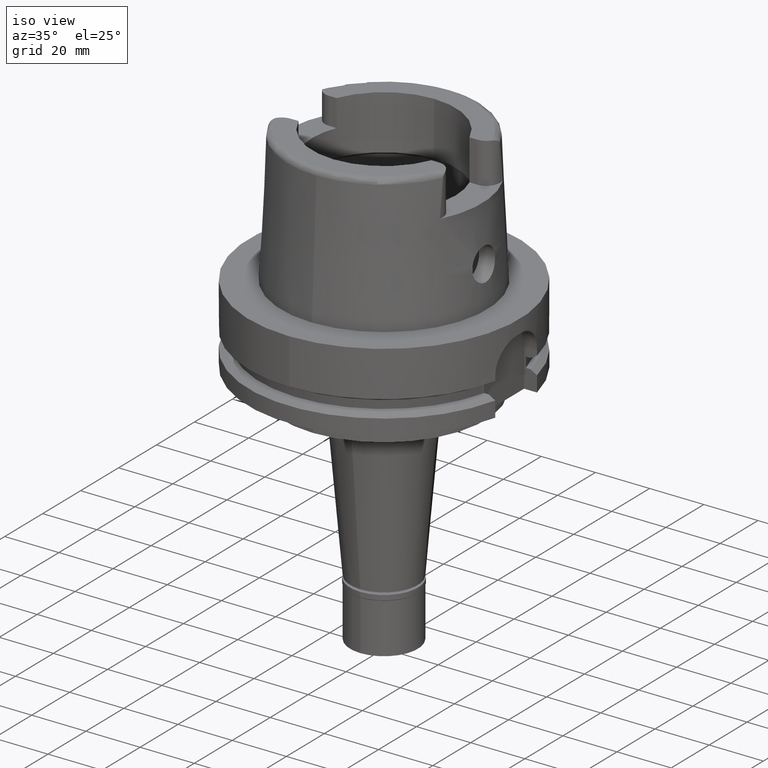
[diagram: clean part render]
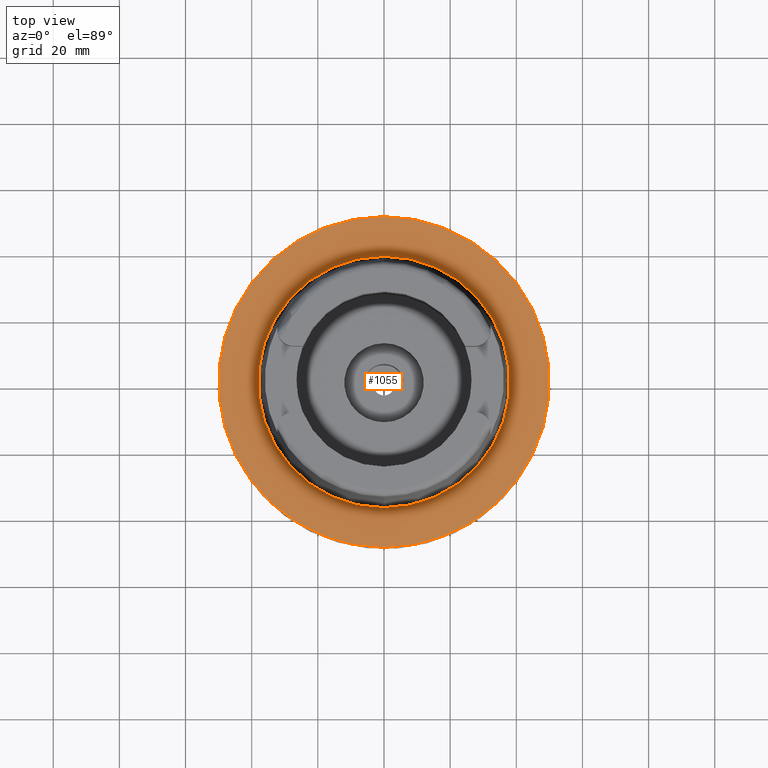
[diagram: tour spotlight — one face highlighted and labeled with its STEP entity id]
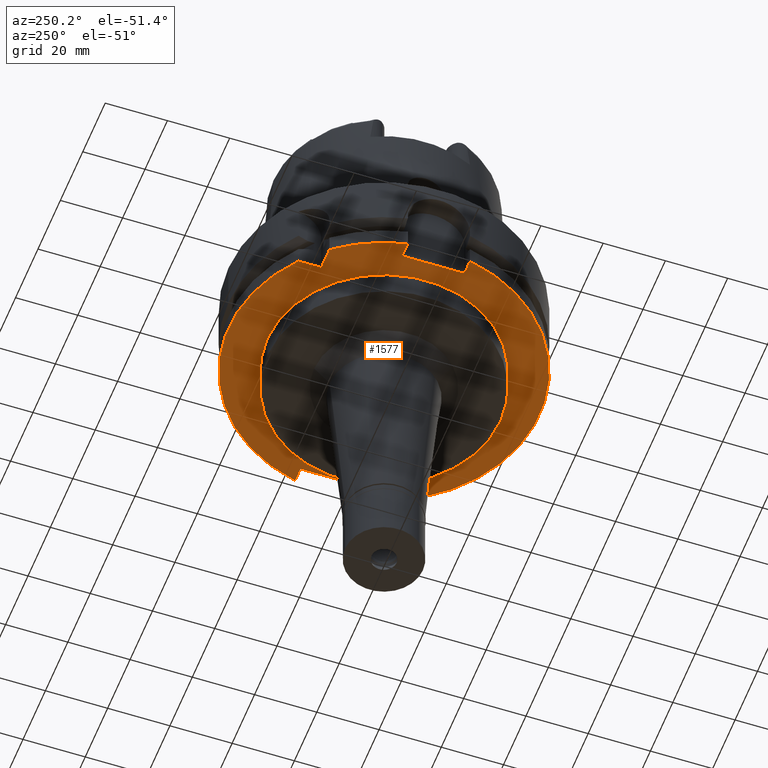
[diagram: tour spotlight — one face highlighted and labeled with its STEP entity id]
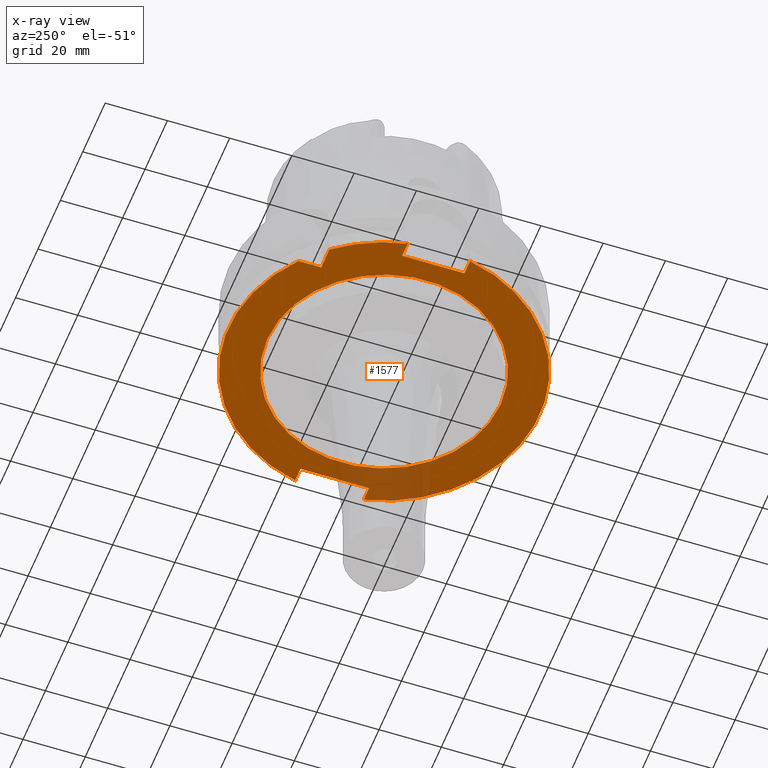
[diagram: x-ray of the same camera — body ghosted, this tour face saturated]
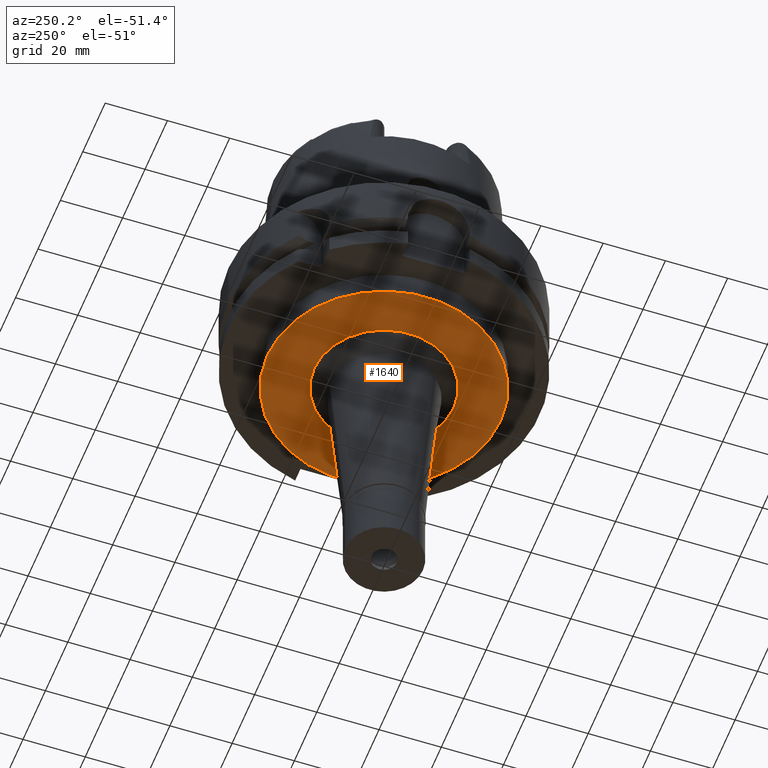
[diagram: tour spotlight — one face highlighted and labeled with its STEP entity id]
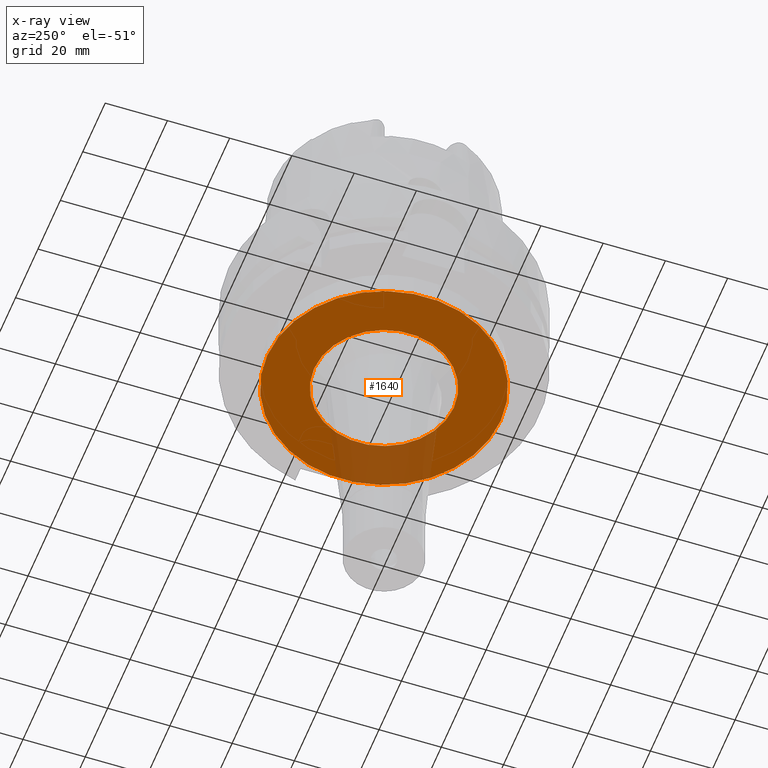
[diagram: x-ray of the same camera — body ghosted, this tour face saturated]
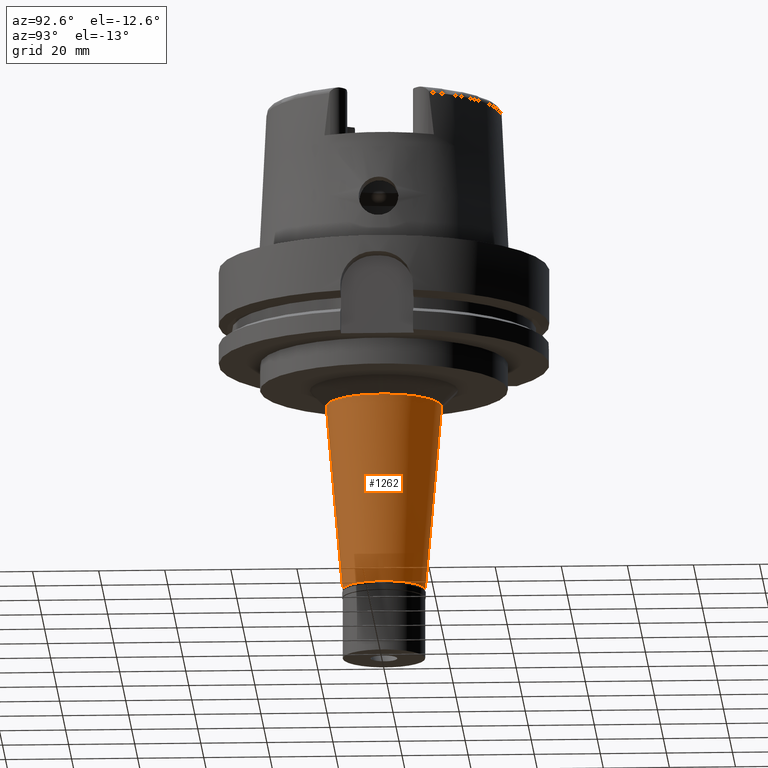
[diagram: tour spotlight — one face highlighted and labeled with its STEP entity id]
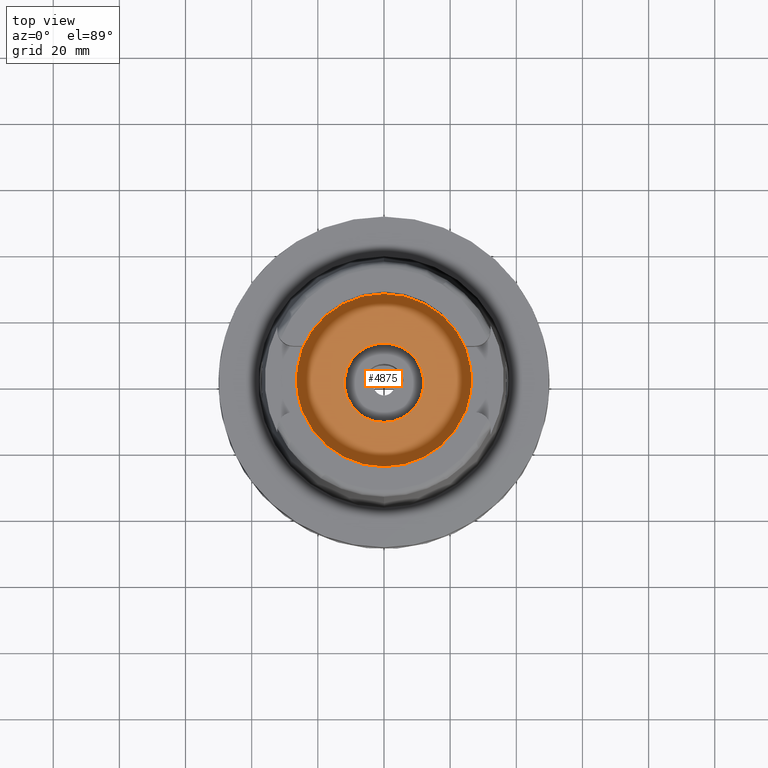
[diagram: tour spotlight — one face highlighted and labeled with its STEP entity id]
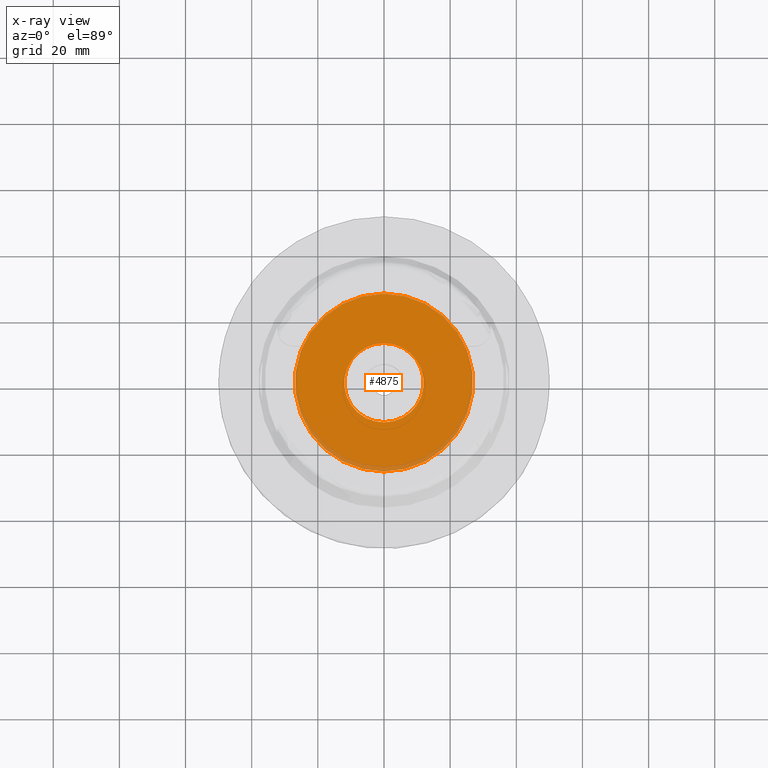
[diagram: x-ray of the same camera — body ghosted, this tour face saturated]
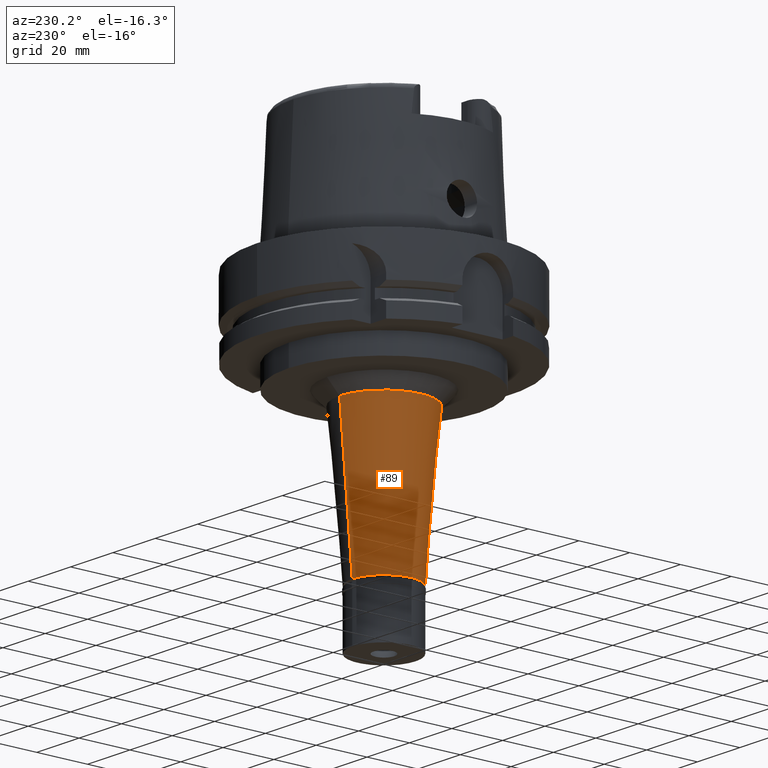
[diagram: tour spotlight — one face highlighted and labeled with its STEP entity id]
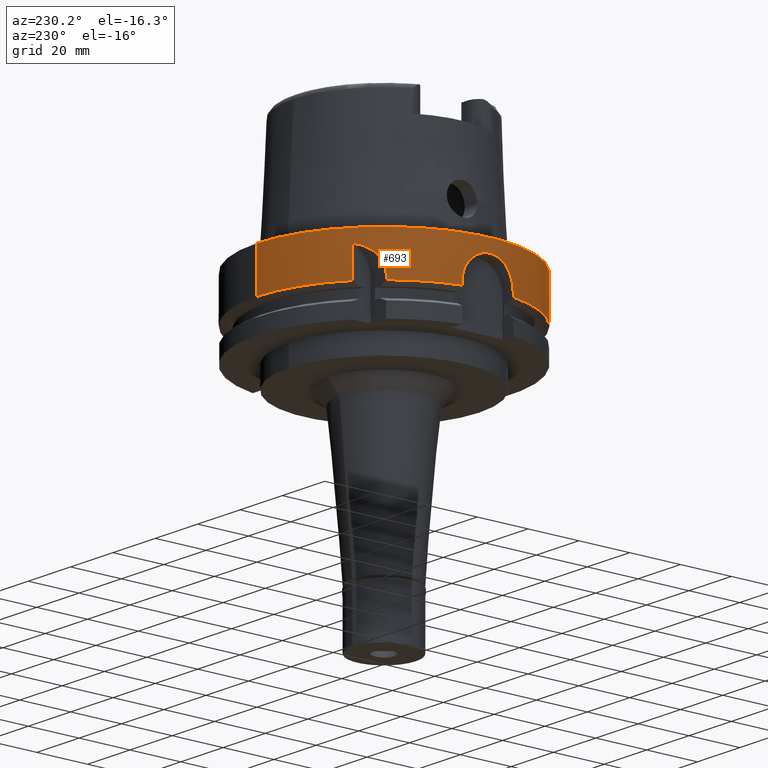
[diagram: tour spotlight — one face highlighted and labeled with its STEP entity id]
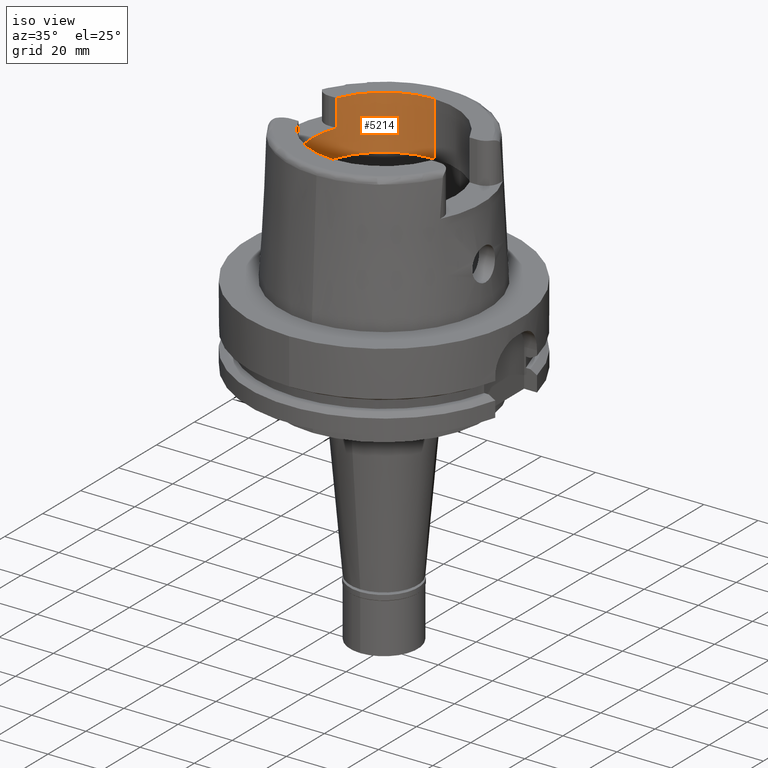
[diagram: tour spotlight — one face highlighted and labeled with its STEP entity id]
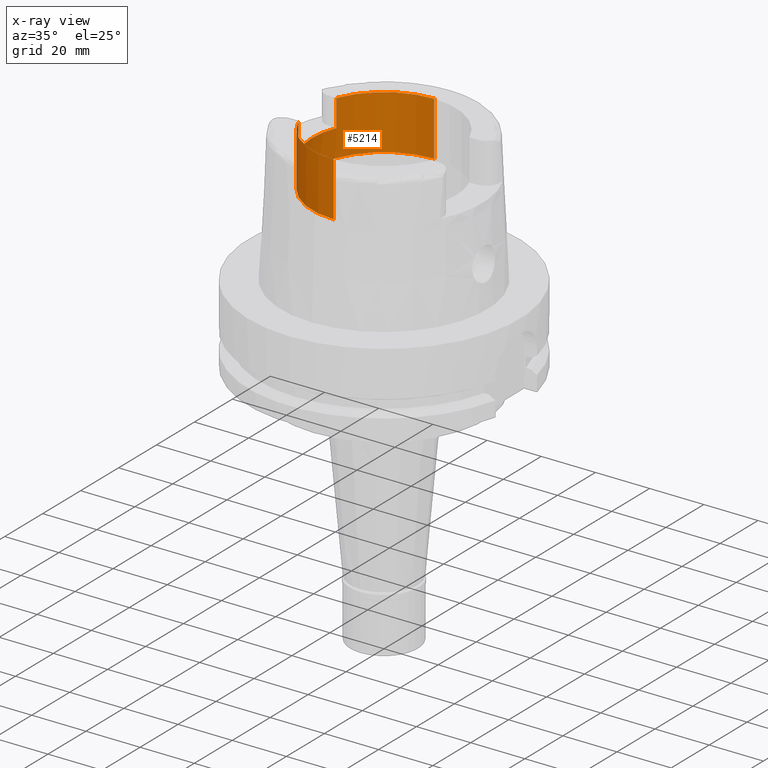
[diagram: x-ray of the same camera — body ghosted, this tour face saturated]
A machine part: a face-by-face anatomy tour. The part has 126 B-rep faces; the first image is the clean iso view, then the 8 largest visible faces are spotlighted one at a time (largest first), each with its STEP entity span.

Face 1 — top view, entity #1055. In plain terms, the highlighted planar face has unit normal (0, 0, 1).
Definition (entity closure, byte-faithful):
#309 = AXIS2_PLACEMENT_3D ( 'NONE', #5203, #2264, #1353 ) ;
#393 = EDGE_LOOP ( 'NONE', ( #4129, #3900 ) ) ;
#403 = CIRCLE ( 'NONE', #1836, 38.00001658251999714 ) ;
#593 = DIRECTION ( 'NONE',  ( 0.0000000000000000000, 0.0000000000000000000, -1.000000000000000000 ) ) ;
#770 = DIRECTION ( 'NONE',  ( 0.0000000000000000000, 0.0000000000000000000, 1.000000000000000000 ) ) ;
#954 = EDGE_CURVE ( 'NONE', #1978, #1067, #403, .T. ) ;
#1055 = ADVANCED_FACE ( 'NONE', ( #5498, #2093 ), #5015, .T. ) ;
#1067 = VERTEX_POINT ( 'NONE', #1131 ) ;
#1131 = CARTESIAN_POINT ( 'NONE',  ( 0.0000000000000000000, 38.00001658251999714, 1.023181539494999863E-12 ) ) ;
#1187 = VERTEX_POINT ( 'NONE', #3714 ) ;
#1353 = DIRECTION ( 'NONE',  ( 0.0000000000000000000, -1.000000000000000000, 0.0000000000000000000 ) ) ;
#1836 = AXIS2_PLACEMENT_3D ( 'NONE', #4429, #3204, #4929 ) ;
#1978 = VERTEX_POINT ( 'NONE', #4362 ) ;
#2093 = FACE_BOUND ( 'NONE', #393, .T. ) ;
#2264 = DIRECTION ( 'NONE',  ( 0.0000000000000000000, 0.0000000000000000000, -1.000000000000000000 ) ) ;
#2277 = AXIS2_PLACEMENT_3D ( 'NONE', #4655, #4203, #5101 ) ;
#2306 = VERTEX_POINT ( 'NONE', #2784 ) ;
#2453 = DIRECTION ( 'NONE',  ( 0.0000000000000000000, 1.000000000000000000, 0.0000000000000000000 ) ) ;
#2722 = CIRCLE ( 'NONE', #309, 50.00000000000000000 ) ;
#2757 = CARTESIAN_POINT ( 'NONE',  ( 0.0000000000000000000, 0.0000000000000000000, -1.847411112975999717E-13 ) ) ;
#2784 = CARTESIAN_POINT ( 'NONE',  ( 0.0000000000000000000, -50.00000000000000000, -1.847411112975999717E-13 ) ) ;
#3204 = DIRECTION ( 'NONE',  ( 0.0000000000000000000, 0.0000000000000000000, 1.000000000000000000 ) ) ;
#3236 = EDGE_CURVE ( 'NONE', #2306, #1187, #2722, .T. ) ;
#3714 = CARTESIAN_POINT ( 'NONE',  ( 0.0000000000000000000, 50.00000000000000000, -1.184237892933999964E-13 ) ) ;
#3900 = ORIENTED_EDGE ( 'NONE', *, *, #954, .F. ) ;
#3924 = AXIS2_PLACEMENT_3D ( 'NONE', #5535, #770, #2453 ) ;
#4091 = CIRCLE ( 'NONE', #3924, 38.00001658251999714 ) ;
#4129 = ORIENTED_EDGE ( 'NONE', *, *, #5295, .F. ) ;
#4203 = DIRECTION ( 'NONE',  ( 0.0000000000000000000, 0.0000000000000000000, 1.000000000000000000 ) ) ;
#4227 = EDGE_CURVE ( 'NONE', #1187, #2306, #4898, .T. ) ;
#4356 = ORIENTED_EDGE ( 'NONE', *, *, #4227, .F. ) ;
#4362 = CARTESIAN_POINT ( 'NONE',  ( 0.0000000000000000000, -38.00001658251999714, 6.892264536873000076E-13 ) ) ;
#4429 = CARTESIAN_POINT ( 'NONE',  ( 0.0000000000000000000, 0.0000000000000000000, 1.023181539494999863E-12 ) ) ;
#4431 = DIRECTION ( 'NONE',  ( 0.0000000000000000000, 1.000000000000000000, 0.0000000000000000000 ) ) ;
#4583 = ORIENTED_EDGE ( 'NONE', *, *, #3236, .F. ) ;
#4655 = CARTESIAN_POINT ( 'NONE',  ( 0.0000000000000000000, 0.0000000000000000000, 1.421085471519999843E-14 ) ) ;
#4896 = EDGE_LOOP ( 'NONE', ( #4356, #4583 ) ) ;
#4898 = CIRCLE ( 'NONE', #5434, 50.00000000000000000 ) ;
#4929 = DIRECTION ( 'NONE',  ( 0.0000000000000000000, -1.000000000000000000, 0.0000000000000000000 ) ) ;
#5015 = PLANE ( 'NONE',  #2277 ) ;
#5101 = DIRECTION ( 'NONE',  ( 1.000000000000000000, 0.0000000000000000000, 0.0000000000000000000 ) ) ;
#5203 = CARTESIAN_POINT ( 'NONE',  ( 0.0000000000000000000, 0.0000000000000000000, -1.847411112975999717E-13 ) ) ;
#5295 = EDGE_CURVE ( 'NONE', #1067, #1978, #4091, .T. ) ;
#5434 = AXIS2_PLACEMENT_3D ( 'NONE', #2757, #593, #4431 ) ;
#5498 = FACE_OUTER_BOUND ( 'NONE', #4896, .T. ) ;
#5535 = CARTESIAN_POINT ( 'NONE',  ( 0.0000000000000000000, 0.0000000000000000000, 1.023181539494999863E-12 ) ) ;

Face 2 — auxiliary view, entity #1577. An x-ray twin of the same camera follows (body ghosted, this face saturated) — the face is partly hidden behind the body. In plain terms, the highlighted planar face has unit normal (0, 0, 1).
Definition (entity closure, byte-faithful):
#30 = LINE ( 'NONE', #3492, #4077 ) ;
#65 = CIRCLE ( 'NONE', #4538, 50.00000000000000000 ) ;
#82 = CARTESIAN_POINT ( 'NONE',  ( 0.0000000000000000000, 0.0000000000000000000, -29.00000000000000000 ) ) ;
#86 = DIRECTION ( 'NONE',  ( -1.000000000000000000, 4.627973610177000155E-14, 0.0000000000000000000 ) ) ;
#104 = ORIENTED_EDGE ( 'NONE', *, *, #3317, .T. ) ;
#105 = ORIENTED_EDGE ( 'NONE', *, *, #776, .F. ) ;
#114 = EDGE_CURVE ( 'NONE', #2483, #4938, #1197, .T. ) ;
#149 = DIRECTION ( 'NONE',  ( 0.0000000000000000000, 0.0000000000000000000, 1.000000000000000000 ) ) ;
#222 = EDGE_CURVE ( 'NONE', #3411, #5384, #4671, .T. ) ;
#231 = DIRECTION ( 'NONE',  ( 1.000000000000000000, -1.785659532940000023E-14, 0.0000000000000000000 ) ) ;
#268 = DIRECTION ( 'NONE',  ( 0.0000000000000000000, -1.000000000000000000, 0.0000000000000000000 ) ) ;
#296 = CARTESIAN_POINT ( 'NONE',  ( -48.98979485565999425, 10.00000000000000000, -29.00000000000000000 ) ) ;
#340 = DIRECTION ( 'NONE',  ( 0.0000000000000000000, 0.0000000000000000000, 1.000000000000000000 ) ) ;
#347 = PLANE ( 'NONE',  #2109 ) ;
#398 = AXIS2_PLACEMENT_3D ( 'NONE', #4641, #340, #2921 ) ;
#449 = CARTESIAN_POINT ( 'NONE',  ( -31.50000000000000000, 31.50000000000000000, -29.00000000000000000 ) ) ;
#482 = CARTESIAN_POINT ( 'NONE',  ( 0.0000000000000000000, 0.0000000000000000000, -29.00000000000000000 ) ) ;
#527 = CARTESIAN_POINT ( 'NONE',  ( 44.00000000000000000, 11.00000000000000000, -29.00000000000000000 ) ) ;
#537 = EDGE_CURVE ( 'NONE', #4106, #658, #742, .T. ) ;
#630 = CARTESIAN_POINT ( 'NONE',  ( -44.00000000000000000, -10.00000000000000000, -29.00000000000000000 ) ) ;
#658 = VERTEX_POINT ( 'NONE', #1398 ) ;
#707 = LINE ( 'NONE', #1647, #2222 ) ;
#742 = LINE ( 'NONE', #3847, #3446 ) ;
#776 = EDGE_CURVE ( 'NONE', #4106, #2483, #4307, .T. ) ;
#860 = AXIS2_PLACEMENT_3D ( 'NONE', #82, #4390, #921 ) ;
#921 = DIRECTION ( 'NONE',  ( 0.0000000000000000000, 1.000000000000000000, 0.0000000000000000000 ) ) ;
#1133 = DIRECTION ( 'NONE',  ( 0.0000000000000000000, 1.000000000000000000, 0.0000000000000000000 ) ) ;
#1163 = CARTESIAN_POINT ( 'NONE',  ( 44.00000000000000000, 11.00000000000000000, -29.00000000000000000 ) ) ;
#1177 = VERTEX_POINT ( 'NONE', #2934 ) ;
#1197 = CIRCLE ( 'NONE', #398, 50.00000000000000711 ) ;
#1249 = CARTESIAN_POINT ( 'NONE',  ( 48.77499359303000404, 11.00000000000000000, -29.00000000000000000 ) ) ;
#1292 = VERTEX_POINT ( 'NONE', #2209 ) ;
#1340 = ORIENTED_EDGE ( 'NONE', *, *, #3452, .F. ) ;
#1373 = CARTESIAN_POINT ( 'NONE',  ( 44.00000000000000000, -11.00000000000000000, -29.00000000000000000 ) ) ;
#1398 = CARTESIAN_POINT ( 'NONE',  ( -31.50000000000000000, 38.82975663071000128, -29.00000000000000000 ) ) ;
#1497 = CARTESIAN_POINT ( 'NONE',  ( 44.00000000000000000, 11.00000000000000000, -29.00000000000000000 ) ) ;
#1568 = VECTOR ( 'NONE', #1878, 1000.000000000000000 ) ;
#1577 = ADVANCED_FACE ( 'NONE', ( #5095, #2956 ), #347, .F. ) ;
#1622 = CARTESIAN_POINT ( 'NONE',  ( -38.82975663071000128, 31.50000000000000000, -29.00000000000000000 ) ) ;
#1647 = CARTESIAN_POINT ( 'NONE',  ( -44.00000000000000000, -10.00000000000000000, -29.00000000000000000 ) ) ;
#1716 = DIRECTION ( 'NONE',  ( 4.798503851105999980E-14, 1.000000000000000000, 0.0000000000000000000 ) ) ;
#1731 = DIRECTION ( 'NONE',  ( 0.0000000000000000000, 0.0000000000000000000, 1.000000000000000000 ) ) ;
#1749 = EDGE_LOOP ( 'NONE', ( #4329, #4738, #5204, #104, #4115, #4511, #4291, #2858, #3983, #105, #2353 ) ) ;
#1878 = DIRECTION ( 'NONE',  ( 1.000000000000000000, 1.711257052401000108E-14, 0.0000000000000000000 ) ) ;
#1936 = AXIS2_PLACEMENT_3D ( 'NONE', #5272, #149, #2312 ) ;
#2063 = DIRECTION ( 'NONE',  ( 1.000000000000000000, 0.0000000000000000000, 0.0000000000000000000 ) ) ;
#2109 = AXIS2_PLACEMENT_3D ( 'NONE', #3795, #1731, #2063 ) ;
#2164 = DIRECTION ( 'NONE',  ( -1.000000000000000000, -4.798503851105999980E-14, 0.0000000000000000000 ) ) ;
#2209 = CARTESIAN_POINT ( 'NONE',  ( 0.0000000000000000000, 37.50000000000000000, -29.00000000000000000 ) ) ;
#2222 = VECTOR ( 'NONE', #1133, 1000.000000000000000 ) ;
#2248 = DIRECTION ( 'NONE',  ( 0.0000000000000000000, -1.000000000000000000, 0.0000000000000000000 ) ) ;
#2283 = CIRCLE ( 'NONE', #5255, 37.50000000000000000 ) ;
#2296 = CARTESIAN_POINT ( 'NONE',  ( 44.00000000000000000, -11.00000000000000000, -29.00000000000000000 ) ) ;
#2312 = DIRECTION ( 'NONE',  ( 0.0000000000000000000, 1.000000000000000000, 0.0000000000000000000 ) ) ;
#2353 = ORIENTED_EDGE ( 'NONE', *, *, #537, .T. ) ;
#2483 = VERTEX_POINT ( 'NONE', #1622 ) ;
#2495 = EDGE_CURVE ( 'NONE', #3152, #4127, #5105, .T. ) ;
#2522 = CARTESIAN_POINT ( 'NONE',  ( -44.00000000000000000, -10.00000000000000000, -29.00000000000000000 ) ) ;
#2564 = VERTEX_POINT ( 'NONE', #4081 ) ;
#2858 = ORIENTED_EDGE ( 'NONE', *, *, #3734, .T. ) ;
#2906 = VECTOR ( 'NONE', #2164, 1000.000000000000000 ) ;
#2921 = DIRECTION ( 'NONE',  ( -0.7765951326141738997, 0.6299999999999789102, 0.0000000000000000000 ) ) ;
#2934 = CARTESIAN_POINT ( 'NONE',  ( 0.0000000000000000000, -37.50000000000000000, -29.00000000000000000 ) ) ;
#2956 = FACE_BOUND ( 'NONE', #2975, .T. ) ;
#2975 = EDGE_LOOP ( 'NONE', ( #4905, #1340 ) ) ;
#2993 = VECTOR ( 'NONE', #4248, 1000.000000000000000 ) ;
#3020 = VECTOR ( 'NONE', #268, 1000.000000000000000 ) ;
#3107 = CARTESIAN_POINT ( 'NONE',  ( -31.50000000000000000, 31.50000000000000000, -29.00000000000000000 ) ) ;
#3142 = EDGE_CURVE ( 'NONE', #1292, #1177, #4539, .T. ) ;
#3152 = VERTEX_POINT ( 'NONE', #527 ) ;
#3155 = LINE ( 'NONE', #2296, #1568 ) ;
#3165 = CARTESIAN_POINT ( 'NONE',  ( 0.0000000000000000000, 0.0000000000000000000, -29.00000000000000000 ) ) ;
#3195 = DIRECTION ( 'NONE',  ( 0.0000000000000000000, -1.000000000000000000, 0.0000000000000000000 ) ) ;
#3317 = EDGE_CURVE ( 'NONE', #4127, #4193, #3155, .T. ) ;
#3411 = VERTEX_POINT ( 'NONE', #630 ) ;
#3446 = VECTOR ( 'NONE', #1716, 1000.000000000000000 ) ;
#3452 = EDGE_CURVE ( 'NONE', #1177, #1292, #2283, .T. ) ;
#3474 = CIRCLE ( 'NONE', #1936, 50.00000000000000000 ) ;
#3492 = CARTESIAN_POINT ( 'NONE',  ( -44.00000000000000000, 10.00000000000000000, -29.00000000000000000 ) ) ;
#3622 = DIRECTION ( 'NONE',  ( 0.0000000000000000000, 0.0000000000000000000, -1.000000000000000000 ) ) ;
#3716 = CARTESIAN_POINT ( 'NONE',  ( -48.98979485565999425, -10.00000000000000000, -29.00000000000000000 ) ) ;
#3734 = EDGE_CURVE ( 'NONE', #2564, #4938, #30, .T. ) ;
#3795 = CARTESIAN_POINT ( 'NONE',  ( 0.0000000000000000000, 0.0000000000000000000, -29.00000000000000000 ) ) ;
#3847 = CARTESIAN_POINT ( 'NONE',  ( -31.50000000000000000, 31.50000000000000000, -29.00000000000000000 ) ) ;
#3983 = ORIENTED_EDGE ( 'NONE', *, *, #114, .F. ) ;
#4077 = VECTOR ( 'NONE', #86, 1000.000000000000000 ) ;
#4081 = CARTESIAN_POINT ( 'NONE',  ( -44.00000000000000000, 10.00000000000000000, -29.00000000000000000 ) ) ;
#4106 = VERTEX_POINT ( 'NONE', #3107 ) ;
#4115 = ORIENTED_EDGE ( 'NONE', *, *, #4832, .F. ) ;
#4127 = VERTEX_POINT ( 'NONE', #1373 ) ;
#4193 = VERTEX_POINT ( 'NONE', #4504 ) ;
#4248 = DIRECTION ( 'NONE',  ( -1.000000000000000000, -4.627973610177000155E-14, 0.0000000000000000000 ) ) ;
#4291 = ORIENTED_EDGE ( 'NONE', *, *, #5283, .T. ) ;
#4307 = LINE ( 'NONE', #449, #2906 ) ;
#4329 = ORIENTED_EDGE ( 'NONE', *, *, #4661, .F. ) ;
#4390 = DIRECTION ( 'NONE',  ( 0.0000000000000000000, 0.0000000000000000000, -1.000000000000000000 ) ) ;
#4455 = VECTOR ( 'NONE', #231, 1000.000000000000000 ) ;
#4504 = CARTESIAN_POINT ( 'NONE',  ( 48.77499359303000404, -11.00000000000000000, -29.00000000000000000 ) ) ;
#4511 = ORIENTED_EDGE ( 'NONE', *, *, #222, .F. ) ;
#4538 = AXIS2_PLACEMENT_3D ( 'NONE', #482, #5259, #2248 ) ;
#4539 = CIRCLE ( 'NONE', #860, 37.50000000000000000 ) ;
#4636 = EDGE_CURVE ( 'NONE', #3152, #5492, #4949, .T. ) ;
#4641 = CARTESIAN_POINT ( 'NONE',  ( 0.0000000000000000000, 0.0000000000000000000, -29.00000000000000000 ) ) ;
#4661 = EDGE_CURVE ( 'NONE', #5492, #658, #3474, .T. ) ;
#4671 = LINE ( 'NONE', #2522, #2993 ) ;
#4738 = ORIENTED_EDGE ( 'NONE', *, *, #4636, .F. ) ;
#4832 = EDGE_CURVE ( 'NONE', #5384, #4193, #65, .T. ) ;
#4905 = ORIENTED_EDGE ( 'NONE', *, *, #3142, .F. ) ;
#4938 = VERTEX_POINT ( 'NONE', #296 ) ;
#4949 = LINE ( 'NONE', #1497, #4455 ) ;
#5095 = FACE_OUTER_BOUND ( 'NONE', #1749, .T. ) ;
#5105 = LINE ( 'NONE', #1163, #3020 ) ;
#5204 = ORIENTED_EDGE ( 'NONE', *, *, #2495, .T. ) ;
#5255 = AXIS2_PLACEMENT_3D ( 'NONE', #3165, #3622, #3195 ) ;
#5259 = DIRECTION ( 'NONE',  ( 0.0000000000000000000, 0.0000000000000000000, 1.000000000000000000 ) ) ;
#5272 = CARTESIAN_POINT ( 'NONE',  ( 0.0000000000000000000, 0.0000000000000000000, -29.00000000000000000 ) ) ;
#5283 = EDGE_CURVE ( 'NONE', #3411, #2564, #707, .T. ) ;
#5384 = VERTEX_POINT ( 'NONE', #3716 ) ;
#5492 = VERTEX_POINT ( 'NONE', #1249 ) ;

Face 3 — auxiliary view, entity #1640. An x-ray twin of the same camera follows (body ghosted, this face saturated) — the face is partly hidden behind the body. In plain terms, the highlighted planar face has unit normal (0, 0, 1).
Definition (entity closure, byte-faithful):
#156 = DIRECTION ( 'NONE',  ( 0.0000000000000000000, 1.000000000000000000, 0.0000000000000000000 ) ) ;
#171 = ORIENTED_EDGE ( 'NONE', *, *, #4395, .F. ) ;
#201 = EDGE_CURVE ( 'NONE', #3560, #3992, #3163, .T. ) ;
#319 = CARTESIAN_POINT ( 'NONE',  ( 0.0000000000000000000, -37.50000000000000000, -37.00000000000000000 ) ) ;
#342 = CARTESIAN_POINT ( 'NONE',  ( 0.0000000000000000000, 22.46060722192000014, -37.00000000000000000 ) ) ;
#402 = FACE_OUTER_BOUND ( 'NONE', #3713, .T. ) ;
#574 = AXIS2_PLACEMENT_3D ( 'NONE', #2078, #1659, #2464 ) ;
#739 = DIRECTION ( 'NONE',  ( 0.0000000000000000000, -1.000000000000000000, 0.0000000000000000000 ) ) ;
#996 = DIRECTION ( 'NONE',  ( 0.0000000000000000000, 0.0000000000000000000, 1.000000000000000000 ) ) ;
#1000 = CARTESIAN_POINT ( 'NONE',  ( 0.0000000000000000000, 37.50000000000000000, -37.00000000000000000 ) ) ;
#1178 = PLANE ( 'NONE',  #5433 ) ;
#1202 = VERTEX_POINT ( 'NONE', #319 ) ;
#1236 = DIRECTION ( 'NONE',  ( 0.0000000000000000000, 0.0000000000000000000, -1.000000000000000000 ) ) ;
#1640 = ADVANCED_FACE ( 'NONE', ( #402, #3831 ), #1178, .F. ) ;
#1659 = DIRECTION ( 'NONE',  ( 0.0000000000000000000, 0.0000000000000000000, -1.000000000000000000 ) ) ;
#1704 = DIRECTION ( 'NONE',  ( 1.000000000000000000, 0.0000000000000000000, 0.0000000000000000000 ) ) ;
#1816 = EDGE_CURVE ( 'NONE', #3992, #3560, #3094, .T. ) ;
#2078 = CARTESIAN_POINT ( 'NONE',  ( 0.0000000000000000000, 0.0000000000000000000, -37.00000000000000000 ) ) ;
#2117 = CARTESIAN_POINT ( 'NONE',  ( 0.0000000000000000000, 0.0000000000000000000, -37.00000000000000000 ) ) ;
#2290 = AXIS2_PLACEMENT_3D ( 'NONE', #3689, #3721, #739 ) ;
#2386 = EDGE_CURVE ( 'NONE', #1202, #3281, #5264, .T. ) ;
#2444 = EDGE_LOOP ( 'NONE', ( #3308, #2539 ) ) ;
#2449 = AXIS2_PLACEMENT_3D ( 'NONE', #2553, #1236, #3823 ) ;
#2464 = DIRECTION ( 'NONE',  ( 0.0000000000000000000, -1.000000000000000000, 0.0000000000000000000 ) ) ;
#2539 = ORIENTED_EDGE ( 'NONE', *, *, #1816, .F. ) ;
#2553 = CARTESIAN_POINT ( 'NONE',  ( 0.0000000000000000000, 0.0000000000000000000, -37.00000000000000000 ) ) ;
#3094 = CIRCLE ( 'NONE', #574, 22.46060722192000014 ) ;
#3163 = CIRCLE ( 'NONE', #2449, 22.46060722192000014 ) ;
#3281 = VERTEX_POINT ( 'NONE', #1000 ) ;
#3308 = ORIENTED_EDGE ( 'NONE', *, *, #201, .F. ) ;
#3549 = AXIS2_PLACEMENT_3D ( 'NONE', #4849, #996, #156 ) ;
#3560 = VERTEX_POINT ( 'NONE', #342 ) ;
#3689 = CARTESIAN_POINT ( 'NONE',  ( 0.0000000000000000000, 0.0000000000000000000, -37.00000000000000000 ) ) ;
#3713 = EDGE_LOOP ( 'NONE', ( #171, #4933 ) ) ;
#3721 = DIRECTION ( 'NONE',  ( 0.0000000000000000000, 0.0000000000000000000, 1.000000000000000000 ) ) ;
#3823 = DIRECTION ( 'NONE',  ( 0.0000000000000000000, 1.000000000000000000, 0.0000000000000000000 ) ) ;
#3831 = FACE_BOUND ( 'NONE', #2444, .T. ) ;
#3929 = CARTESIAN_POINT ( 'NONE',  ( 0.0000000000000000000, -22.46060722192000014, -37.00000000000000000 ) ) ;
#3992 = VERTEX_POINT ( 'NONE', #3929 ) ;
#4395 = EDGE_CURVE ( 'NONE', #3281, #1202, #4532, .T. ) ;
#4532 = CIRCLE ( 'NONE', #3549, 37.50000000000000000 ) ;
#4849 = CARTESIAN_POINT ( 'NONE',  ( 0.0000000000000000000, 0.0000000000000000000, -37.00000000000000000 ) ) ;
#4933 = ORIENTED_EDGE ( 'NONE', *, *, #2386, .F. ) ;
#5264 = CIRCLE ( 'NONE', #2290, 37.50000000000000000 ) ;
#5433 = AXIS2_PLACEMENT_3D ( 'NONE', #2117, #5556, #1704 ) ;
#5556 = DIRECTION ( 'NONE',  ( 0.0000000000000000000, 0.0000000000000000000, 1.000000000000000000 ) ) ;

Face 4 — auxiliary view, entity #1262. In plain terms, the highlighted conical surface has half-angle 5 deg.
Definition (entity closure, byte-faithful):
#219 = CIRCLE ( 'NONE', #5532, 17.46060722192000014 ) ;
#251 = DIRECTION ( 'NONE',  ( 0.0000000000000000000, 0.08715574274766398066, -0.9961946980917449901 ) ) ;
#382 = EDGE_CURVE ( 'NONE', #4226, #5262, #5448, .T. ) ;
#443 = CARTESIAN_POINT ( 'NONE',  ( 0.0000000000000000000, 0.0000000000000000000, -70.34999999999999432 ) ) ;
#491 = FACE_OUTER_BOUND ( 'NONE', #3745, .T. ) ;
#569 = CONICAL_SURFACE ( 'NONE', #1022, 14.98030361096000007, 0.08726646259969973729 ) ;
#746 = VECTOR ( 'NONE', #3781, 1000.000000000000227 ) ;
#790 = DIRECTION ( 'NONE',  ( 0.0000000000000000000, -1.000000000000000000, 0.0000000000000000000 ) ) ;
#937 = AXIS2_PLACEMENT_3D ( 'NONE', #3861, #2476, #790 ) ;
#1022 = AXIS2_PLACEMENT_3D ( 'NONE', #443, #2234, #4401 ) ;
#1074 = CARTESIAN_POINT ( 'NONE',  ( 0.0000000000000000000, -17.46060722192000014, -42.00000000000000000 ) ) ;
#1262 = ADVANCED_FACE ( 'NONE', ( #491 ), #569, .T. ) ;
#1352 = CARTESIAN_POINT ( 'NONE',  ( 0.0000000000000000000, 0.0000000000000000000, -42.00000000000000000 ) ) ;
#1499 = EDGE_CURVE ( 'NONE', #4235, #5262, #3712, .T. ) ;
#1893 = ORIENTED_EDGE ( 'NONE', *, *, #1499, .T. ) ;
#1894 = CARTESIAN_POINT ( 'NONE',  ( 0.0000000000000000000, 17.46060722192000014, -42.00000000000000000 ) ) ;
#2090 = EDGE_CURVE ( 'NONE', #4165, #4226, #219, .T. ) ;
#2141 = CARTESIAN_POINT ( 'NONE',  ( 0.0000000000000000000, 12.50000000000000000, -98.70000000000000284 ) ) ;
#2234 = DIRECTION ( 'NONE',  ( 0.0000000000000000000, 0.0000000000000000000, 1.000000000000000000 ) ) ;
#2476 = DIRECTION ( 'NONE',  ( 0.0000000000000000000, 0.0000000000000000000, 1.000000000000000000 ) ) ;
#2607 = DIRECTION ( 'NONE',  ( 0.0000000000000000000, 0.0000000000000000000, 1.000000000000000000 ) ) ;
#2785 = EDGE_CURVE ( 'NONE', #4165, #4235, #4887, .T. ) ;
#3598 = CARTESIAN_POINT ( 'NONE',  ( 0.0000000000000000000, -17.46060722192000014, -42.00000000000000000 ) ) ;
#3684 = CARTESIAN_POINT ( 'NONE',  ( 0.0000000000000000000, -12.50000000000000000, -98.70000000000000284 ) ) ;
#3712 = CIRCLE ( 'NONE', #937, 12.50000000000000000 ) ;
#3745 = EDGE_LOOP ( 'NONE', ( #4209, #4217, #1893, #5281 ) ) ;
#3781 = DIRECTION ( 'NONE',  ( 0.0000000000000000000, -0.08715574274766398066, -0.9961946980917449901 ) ) ;
#3861 = CARTESIAN_POINT ( 'NONE',  ( 0.0000000000000000000, 0.0000000000000000000, -98.70000000000000284 ) ) ;
#4165 = VERTEX_POINT ( 'NONE', #1074 ) ;
#4209 = ORIENTED_EDGE ( 'NONE', *, *, #2090, .F. ) ;
#4217 = ORIENTED_EDGE ( 'NONE', *, *, #2785, .T. ) ;
#4226 = VERTEX_POINT ( 'NONE', #1894 ) ;
#4235 = VERTEX_POINT ( 'NONE', #3684 ) ;
#4401 = DIRECTION ( 'NONE',  ( 0.0000000000000000000, 1.000000000000000000, 0.0000000000000000000 ) ) ;
#4778 = DIRECTION ( 'NONE',  ( 0.0000000000000000000, -1.000000000000000000, 0.0000000000000000000 ) ) ;
#4819 = VECTOR ( 'NONE', #251, 1000.000000000000227 ) ;
#4887 = LINE ( 'NONE', #3598, #4819 ) ;
#5135 = CARTESIAN_POINT ( 'NONE',  ( 0.0000000000000000000, 17.46060722192000014, -42.00000000000000000 ) ) ;
#5262 = VERTEX_POINT ( 'NONE', #2141 ) ;
#5281 = ORIENTED_EDGE ( 'NONE', *, *, #382, .F. ) ;
#5448 = LINE ( 'NONE', #5135, #746 ) ;
#5532 = AXIS2_PLACEMENT_3D ( 'NONE', #1352, #2607, #4778 ) ;

Face 5 — top view, entity #4875. An x-ray twin of the same camera follows (body ghosted, this face saturated) — the face is partly hidden behind the body. In plain terms, the highlighted planar face has unit normal (0, 0, 1).
Definition (entity closure, byte-faithful):
#102 = DIRECTION ( 'NONE',  ( 0.0000000000000000000, 0.0000000000000000000, -1.000000000000000000 ) ) ;
#522 = CARTESIAN_POINT ( 'NONE',  ( 0.0000000000000000000, 12.00000000000000000, -12.44999999999999929 ) ) ;
#547 = DIRECTION ( 'NONE',  ( 0.0000000000000000000, 1.000000000000000000, 0.0000000000000000000 ) ) ;
#604 = VERTEX_POINT ( 'NONE', #522 ) ;
#623 = DIRECTION ( 'NONE',  ( 0.0000000000000000000, 0.0000000000000000000, 1.000000000000000000 ) ) ;
#657 = CIRCLE ( 'NONE', #1575, 26.89999999999999858 ) ;
#811 = CARTESIAN_POINT ( 'NONE',  ( 0.0000000000000000000, 26.89999999999999858, -12.44999999999999929 ) ) ;
#1141 = DIRECTION ( 'NONE',  ( 0.0000000000000000000, 0.0000000000000000000, 1.000000000000000000 ) ) ;
#1183 = CARTESIAN_POINT ( 'NONE',  ( 0.0000000000000000000, 0.0000000000000000000, -12.44999999999999929 ) ) ;
#1201 = EDGE_CURVE ( 'NONE', #4057, #3500, #2647, .T. ) ;
#1575 = AXIS2_PLACEMENT_3D ( 'NONE', #4833, #102, #547 ) ;
#2096 = EDGE_CURVE ( 'NONE', #3500, #4057, #657, .T. ) ;
#2127 = AXIS2_PLACEMENT_3D ( 'NONE', #4216, #4640, #4192 ) ;
#2320 = ORIENTED_EDGE ( 'NONE', *, *, #1201, .F. ) ;
#2326 = CARTESIAN_POINT ( 'NONE',  ( 0.0000000000000000000, 0.0000000000000000000, -12.44999999999999929 ) ) ;
#2365 = ORIENTED_EDGE ( 'NONE', *, *, #2941, .F. ) ;
#2647 = CIRCLE ( 'NONE', #3810, 26.89999999999999858 ) ;
#2764 = CARTESIAN_POINT ( 'NONE',  ( 0.0000000000000000000, 0.0000000000000000000, -12.44999999999999929 ) ) ;
#2830 = AXIS2_PLACEMENT_3D ( 'NONE', #2326, #623, #3215 ) ;
#2928 = CIRCLE ( 'NONE', #2830, 12.00000000000000000 ) ;
#2941 = EDGE_CURVE ( 'NONE', #5234, #604, #5429, .T. ) ;
#3033 = CARTESIAN_POINT ( 'NONE',  ( 0.0000000000000000000, -12.00000000000000000, -12.44999999999999929 ) ) ;
#3187 = EDGE_LOOP ( 'NONE', ( #4178, #2365 ) ) ;
#3215 = DIRECTION ( 'NONE',  ( 0.0000000000000000000, 1.000000000000000000, 0.0000000000000000000 ) ) ;
#3293 = DIRECTION ( 'NONE',  ( 0.0000000000000000000, -1.000000000000000000, 0.0000000000000000000 ) ) ;
#3302 = FACE_BOUND ( 'NONE', #3187, .T. ) ;
#3394 = EDGE_LOOP ( 'NONE', ( #5001, #2320 ) ) ;
#3500 = VERTEX_POINT ( 'NONE', #811 ) ;
#3810 = AXIS2_PLACEMENT_3D ( 'NONE', #1183, #5439, #3293 ) ;
#3827 = AXIS2_PLACEMENT_3D ( 'NONE', #2764, #1141, #4964 ) ;
#4057 = VERTEX_POINT ( 'NONE', #4800 ) ;
#4064 = FACE_OUTER_BOUND ( 'NONE', #3394, .T. ) ;
#4151 = PLANE ( 'NONE',  #3827 ) ;
#4178 = ORIENTED_EDGE ( 'NONE', *, *, #4926, .F. ) ;
#4192 = DIRECTION ( 'NONE',  ( 0.0000000000000000000, -1.000000000000000000, 0.0000000000000000000 ) ) ;
#4216 = CARTESIAN_POINT ( 'NONE',  ( 0.0000000000000000000, 0.0000000000000000000, -12.44999999999999929 ) ) ;
#4640 = DIRECTION ( 'NONE',  ( 0.0000000000000000000, 0.0000000000000000000, 1.000000000000000000 ) ) ;
#4800 = CARTESIAN_POINT ( 'NONE',  ( 0.0000000000000000000, -26.89999999999999858, -12.44999999999999929 ) ) ;
#4833 = CARTESIAN_POINT ( 'NONE',  ( 0.0000000000000000000, 0.0000000000000000000, -12.44999999999999929 ) ) ;
#4875 = ADVANCED_FACE ( 'NONE', ( #4064, #3302 ), #4151, .T. ) ;
#4926 = EDGE_CURVE ( 'NONE', #604, #5234, #2928, .T. ) ;
#4964 = DIRECTION ( 'NONE',  ( 1.000000000000000000, 0.0000000000000000000, 0.0000000000000000000 ) ) ;
#5001 = ORIENTED_EDGE ( 'NONE', *, *, #2096, .F. ) ;
#5234 = VERTEX_POINT ( 'NONE', #3033 ) ;
#5429 = CIRCLE ( 'NONE', #2127, 12.00000000000000000 ) ;
#5439 = DIRECTION ( 'NONE',  ( 0.0000000000000000000, 0.0000000000000000000, -1.000000000000000000 ) ) ;

Face 6 — auxiliary view, entity #89. In plain terms, the highlighted conical surface has half-angle 5 deg.
Definition (entity closure, byte-faithful):
#89 = ADVANCED_FACE ( 'NONE', ( #5144 ), #4436, .T. ) ;
#251 = DIRECTION ( 'NONE',  ( 0.0000000000000000000, 0.08715574274766398066, -0.9961946980917449901 ) ) ;
#382 = EDGE_CURVE ( 'NONE', #4226, #5262, #5448, .T. ) ;
#503 = CARTESIAN_POINT ( 'NONE',  ( 0.0000000000000000000, 0.0000000000000000000, -42.00000000000000000 ) ) ;
#746 = VECTOR ( 'NONE', #3781, 1000.000000000000227 ) ;
#1074 = CARTESIAN_POINT ( 'NONE',  ( 0.0000000000000000000, -17.46060722192000014, -42.00000000000000000 ) ) ;
#1282 = ORIENTED_EDGE ( 'NONE', *, *, #2785, .F. ) ;
#1480 = AXIS2_PLACEMENT_3D ( 'NONE', #503, #2586, #3932 ) ;
#1894 = CARTESIAN_POINT ( 'NONE',  ( 0.0000000000000000000, 17.46060722192000014, -42.00000000000000000 ) ) ;
#1982 = EDGE_CURVE ( 'NONE', #4165, #4226, #3917, .T. ) ;
#1998 = ORIENTED_EDGE ( 'NONE', *, *, #3973, .T. ) ;
#2057 = DIRECTION ( 'NONE',  ( 0.0000000000000000000, 0.0000000000000000000, 1.000000000000000000 ) ) ;
#2141 = CARTESIAN_POINT ( 'NONE',  ( 0.0000000000000000000, 12.50000000000000000, -98.70000000000000284 ) ) ;
#2146 = CARTESIAN_POINT ( 'NONE',  ( 0.0000000000000000000, 0.0000000000000000000, -70.34999999999999432 ) ) ;
#2586 = DIRECTION ( 'NONE',  ( 0.0000000000000000000, 0.0000000000000000000, -1.000000000000000000 ) ) ;
#2785 = EDGE_CURVE ( 'NONE', #4165, #4235, #4887, .T. ) ;
#3449 = DIRECTION ( 'NONE',  ( 0.0000000000000000000, 0.0000000000000000000, 1.000000000000000000 ) ) ;
#3532 = CARTESIAN_POINT ( 'NONE',  ( 0.0000000000000000000, 0.0000000000000000000, -98.70000000000000284 ) ) ;
#3598 = CARTESIAN_POINT ( 'NONE',  ( 0.0000000000000000000, -17.46060722192000014, -42.00000000000000000 ) ) ;
#3684 = CARTESIAN_POINT ( 'NONE',  ( 0.0000000000000000000, -12.50000000000000000, -98.70000000000000284 ) ) ;
#3781 = DIRECTION ( 'NONE',  ( 0.0000000000000000000, -0.08715574274766398066, -0.9961946980917449901 ) ) ;
#3855 = DIRECTION ( 'NONE',  ( 0.0000000000000000000, 1.000000000000000000, 0.0000000000000000000 ) ) ;
#3917 = CIRCLE ( 'NONE', #1480, 17.46060722192000014 ) ;
#3932 = DIRECTION ( 'NONE',  ( 0.0000000000000000000, -1.000000000000000000, 0.0000000000000000000 ) ) ;
#3973 = EDGE_CURVE ( 'NONE', #5262, #4235, #3996, .T. ) ;
#3996 = CIRCLE ( 'NONE', #4182, 12.50000000000000000 ) ;
#4145 = ORIENTED_EDGE ( 'NONE', *, *, #382, .T. ) ;
#4165 = VERTEX_POINT ( 'NONE', #1074 ) ;
#4182 = AXIS2_PLACEMENT_3D ( 'NONE', #3532, #3449, #5246 ) ;
#4226 = VERTEX_POINT ( 'NONE', #1894 ) ;
#4235 = VERTEX_POINT ( 'NONE', #3684 ) ;
#4436 = CONICAL_SURFACE ( 'NONE', #4610, 14.98030361096000007, 0.08726646259969973729 ) ;
#4610 = AXIS2_PLACEMENT_3D ( 'NONE', #2146, #2057, #3855 ) ;
#4819 = VECTOR ( 'NONE', #251, 1000.000000000000227 ) ;
#4881 = ORIENTED_EDGE ( 'NONE', *, *, #1982, .T. ) ;
#4887 = LINE ( 'NONE', #3598, #4819 ) ;
#4985 = EDGE_LOOP ( 'NONE', ( #1998, #1282, #4881, #4145 ) ) ;
#5135 = CARTESIAN_POINT ( 'NONE',  ( 0.0000000000000000000, 17.46060722192000014, -42.00000000000000000 ) ) ;
#5144 = FACE_OUTER_BOUND ( 'NONE', #4985, .T. ) ;
#5246 = DIRECTION ( 'NONE',  ( 0.0000000000000000000, 1.000000000000000000, 0.0000000000000000000 ) ) ;
#5262 = VERTEX_POINT ( 'NONE', #2141 ) ;
#5448 = LINE ( 'NONE', #5135, #746 ) ;

Face 7 — auxiliary view, entity #693. In plain terms, the highlighted cylindrical surface (partial cylindrical patch) has radius 50 mm, axis along (0, 0, 1).
Definition (entity closure, byte-faithful):
#29 = DIRECTION ( 'NONE',  ( 0.0000000000000000000, -2.969006079282000197E-14, -1.000000000000000000 ) ) ;
#47 = DIRECTION ( 'NONE',  ( 0.0000000000000000000, 0.0000000000000000000, 1.000000000000000000 ) ) ;
#92 = EDGE_CURVE ( 'NONE', #1187, #3314, #5055, .T. ) ;
#120 = CARTESIAN_POINT ( 'NONE',  ( -49.01530539507295003, 9.874410693610940370, -13.38689750556719105 ) ) ;
#123 = CARTESIAN_POINT ( 'NONE',  ( 0.0000000000000000000, 0.0000000000000000000, -121.9899999999999949 ) ) ;
#155 = DIRECTION ( 'NONE',  ( 0.0000000000000000000, 2.969006079282000197E-14, -1.000000000000000000 ) ) ;
#174 = CARTESIAN_POINT ( 'NONE',  ( -48.98979485565999425, -10.00000000000000000, -15.00000000000000000 ) ) ;
#193 = CARTESIAN_POINT ( 'NONE',  ( -35.50466554415385190, 35.20598162835278799, -6.864028966994462522 ) ) ;
#200 = CARTESIAN_POINT ( 'NONE',  ( -48.98979485566344749, -10.00000000000062350, -14.35040054654093744 ) ) ;
#216 = CARTESIAN_POINT ( 'NONE',  ( 0.0000000000000000000, 0.0000000000000000000, -16.75240473580999989 ) ) ;
#221 = CARTESIAN_POINT ( 'NONE',  ( -37.52308249828122655, 33.04593558063287162, -9.292998361862528256 ) ) ;
#232 = CARTESIAN_POINT ( 'NONE',  ( -48.98979485565999425, 10.00000000000000000, -15.00000000000000000 ) ) ;
#245 = B_SPLINE_CURVE_WITH_KNOTS ( 'NONE', 3,
 ( #232, #5357, #4004, #5299, #120, #4478, #610, #2314, #1445, #4458, #3202, #1467, #1498, #1016, #563, #4404, #4426, #2284, #4847, #4903, #2701, #1953, #637, #3225, #1870, #1843, #3583, #4026, #1423, #3147, #1070, #2727, #542, #3657, #2336, #4051, #589, #972, #2754, #5274, #200, #174 ),
 .UNSPECIFIED., .F., .F.,
 ( 4, 2, 2, 2, 2, 2, 2, 2, 2, 2, 2, 2, 2, 2, 2, 2, 2, 2, 2, 2, 4 ),
 ( 0.0000000000000000000, 0.03125000000000006939, 0.06250000000000013878, 0.1250000000000001110, 0.1875000000000000833, 0.2500000000000000555, 0.3125000000000000000, 0.3437500000000000555, 0.3750000000000000555, 0.4375000000000000000, 0.5000000000000000000, 0.5625000000000000000, 0.5937500000000001110, 0.6250000000000001110, 0.6875000000000002220, 0.7500000000000002220, 0.8125000000000002220, 0.8750000000000002220, 0.9062500000000002220, 0.9375000000000002220, 1.000000000000000000 ),
 .UNSPECIFIED. ) ;
#254 = CARTESIAN_POINT ( 'NONE',  ( -35.31810690599165525, 35.39271073202235840, -6.717994714019900115 ) ) ;
#277 = CARTESIAN_POINT ( 'NONE',  ( -35.15477995176586745, 35.55479129263115823, -6.596091636685333270 ) ) ;
#309 = AXIS2_PLACEMENT_3D ( 'NONE', #5203, #2264, #1353 ) ;
#406 = AXIS2_PLACEMENT_3D ( 'NONE', #2573, #3072, #3050 ) ;
#490 = VECTOR ( 'NONE', #155, 1000.000000000000000 ) ;
#542 = CARTESIAN_POINT ( 'NONE',  ( -49.36385112955839816, -7.959134732128759993, -8.910023231633534380 ) ) ;
#563 = CARTESIAN_POINT ( 'NONE',  ( -49.75138076840998025, 4.988441508392058132, -6.326833840334552761 ) ) ;
#589 = CARTESIAN_POINT ( 'NONE',  ( -49.09271153067660265, -9.482342538751565186, -11.80743772968250838 ) ) ;
#605 = CARTESIAN_POINT ( 'NONE',  ( -37.78099013441913456, 32.75102279560953633, -9.787067378375382987 ) ) ;
#610 = CARTESIAN_POINT ( 'NONE',  ( -49.09037232091178282, 9.497375181979204939, -11.80165514795758419 ) ) ;
#635 = EDGE_CURVE ( 'NONE', #3390, #4088, #5243, .T. ) ;
#637 = CARTESIAN_POINT ( 'NONE',  ( -49.98727915188339921, -1.297878036683145053, -5.063039950086047902 ) ) ;
#693 = ADVANCED_FACE ( 'NONE', ( #3509 ), #3976, .T. ) ;
#695 = CARTESIAN_POINT ( 'NONE',  ( -35.65905569101004602, 35.04933286464049758, -6.994423066322610794 ) ) ;
#720 = CARTESIAN_POINT ( 'NONE',  ( -35.14103287760072192, 35.56837728476528326, -6.586064160363802600 ) ) ;
#765 = VECTOR ( 'NONE', #5307, 1000.000000000000227 ) ;
#916 = DIRECTION ( 'NONE',  ( -0.7765951326141738997, 0.6299999999999789102, 0.0000000000000000000 ) ) ;
#972 = CARTESIAN_POINT ( 'NONE',  ( -49.05607991478245111, -9.670065607374267458, -12.43135423384170757 ) ) ;
#978 = LINE ( 'NONE', #1781, #5185 ) ;
#987 = EDGE_CURVE ( 'NONE', #2306, #1406, #1872, .T. ) ;
#1016 = CARTESIAN_POINT ( 'NONE',  ( -49.72223162459410872, 5.270285573454658312, -6.495242745769467696 ) ) ;
#1065 = CARTESIAN_POINT ( 'NONE',  ( -37.61111335045283255, 32.94560812772705560, -9.456285525756104704 ) ) ;
#1070 = CARTESIAN_POINT ( 'NONE',  ( -49.56400208266023100, -6.605564674951361681, -7.463224986165742258 ) ) ;
#1089 = CARTESIAN_POINT ( 'NONE',  ( -38.49419894207815673, 31.90919291945427361, -11.80539911353879390 ) ) ;
#1119 = CARTESIAN_POINT ( 'NONE',  ( -38.66988795523280942, 31.69622689291470152, -12.64992475194902610 ) ) ;
#1147 = CARTESIAN_POINT ( 'NONE',  ( -32.91423892373847337, 37.68247861605095039, -5.317893948465001408 ) ) ;
#1187 = VERTEX_POINT ( 'NONE', #3714 ) ;
#1277 = CARTESIAN_POINT ( 'NONE',  ( 0.0000000000000000000, -50.00000000000000000, -16.75240473580999989 ) ) ;
#1300 = CARTESIAN_POINT ( 'NONE',  ( -31.50000355958999876, 38.82975374304999860, -16.75239179145000179 ) ) ;
#1353 = DIRECTION ( 'NONE',  ( 0.0000000000000000000, -1.000000000000000000, 0.0000000000000000000 ) ) ;
#1369 = EDGE_CURVE ( 'NONE', #2865, #1406, #3629, .T. ) ;
#1406 = VERTEX_POINT ( 'NONE', #1277 ) ;
#1423 = CARTESIAN_POINT ( 'NONE',  ( -49.75276536956204154, -4.996883103095633771, -6.312905504085933650 ) ) ;
#1445 = CARTESIAN_POINT ( 'NONE',  ( -49.24057558907728094, 8.689272595704201407, -10.00695907174307209 ) ) ;
#1460 = ORIENTED_EDGE ( 'NONE', *, *, #987, .F. ) ;
#1467 = CARTESIAN_POINT ( 'NONE',  ( -49.56420845892561289, 6.603983419873173943, -7.461919445018867059 ) ) ;
#1468 = AXIS2_PLACEMENT_3D ( 'NONE', #2217, #3056, #916 ) ;
#1469 = VERTEX_POINT ( 'NONE', #1300 ) ;
#1489 = CARTESIAN_POINT ( 'NONE',  ( -37.33552070761194841, 33.25746258466483596, -8.974669506605598812 ) ) ;
#1498 = CARTESIAN_POINT ( 'NONE',  ( -49.63038059569378646, 6.093458209324535524, -7.043598460244474779 ) ) ;
#1512 = DIRECTION ( 'NONE',  ( 0.0000000000000000000, 0.0000000000000000000, 1.000000000000000000 ) ) ;
#1572 = CARTESIAN_POINT ( 'NONE',  ( -35.22321838686971773, 35.48703284278268200, -6.646514604423249928 ) ) ;
#1605 = VERTEX_POINT ( 'NONE', #3436 ) ;
#1620 = ORIENTED_EDGE ( 'NONE', *, *, #92, .T. ) ;
#1691 = LINE ( 'NONE', #5049, #4294 ) ;
#1720 = B_SPLINE_CURVE_WITH_KNOTS ( 'NONE', 3,
 ( #1994, #2355, #1943, #2330, #1119, #2829, #4104, #3651, #1089, #5426, #4971, #3700, #3220, #4495, #605, #1065, #221, #5346, #4556, #1489, #4045, #2795, #5375, #4944, #2026, #3738, #695, #193, #254, #1572, #2412, #277, #720, #3283, #5004, #1147, #2438 ),
 .UNSPECIFIED., .F., .F.,
 ( 4, 2, 2, 1, 1, 2, 2, 2, 2, 1, 1, 1, 2, 2, 2, 2, 1, 1, 1, 1, 2, 2, 4 ),
 ( 0.0000000000000000000, 0.1249999999999858169, 0.1874999999999788225, 0.2187499999999753530, 0.2343749999999736044, 0.2421874999999721056, 0.2499999999999706068, 0.3749999999999434896, 0.4374999999999294453, 0.4687499999999228950, 0.4843749999999196754, 0.4921874999999181766, 0.4960937499999178990, 0.4999999999999176215, 0.6249999999999265032, 0.6874999999999317213, 0.7187499999999343858, 0.7343749999999360512, 0.7421874999999364952, 0.7460937499999371614, 0.7480468749999374944, 0.7499999999999378275, 1.000000000000000000 ),
 .UNSPECIFIED. ) ;
#1781 = CARTESIAN_POINT ( 'NONE',  ( -48.98979485565999425, 10.00000000000000000, -15.00000000000000000 ) ) ;
#1843 = CARTESIAN_POINT ( 'NONE',  ( -49.89840428331468303, -3.201080303789233916, -5.520506140544677365 ) ) ;
#1847 = DIRECTION ( 'NONE',  ( 0.0000000000000000000, 1.000000000000000000, 0.0000000000000000000 ) ) ;
#1870 = CARTESIAN_POINT ( 'NONE',  ( -49.93451952851528830, -2.577096154346463663, -5.332174714492533774 ) ) ;
#1872 = LINE ( 'NONE', #3228, #490 ) ;
#1884 = CARTESIAN_POINT ( 'NONE',  ( -48.98979485565999425, -10.00000000000000000, -16.75240473580999989 ) ) ;
#1943 = CARTESIAN_POINT ( 'NONE',  ( -38.79930545442863377, 31.53776356397751357, -13.63538956648598521 ) ) ;
#1953 = CARTESIAN_POINT ( 'NONE',  ( -49.99998093219981143, -0.6534672038370167302, -5.000092578581938341 ) ) ;
#1994 = CARTESIAN_POINT ( 'NONE',  ( -38.82975663071000128, 31.50000000000000000, -14.63689785921000031 ) ) ;
#2010 = AXIS2_PLACEMENT_3D ( 'NONE', #123, #47, #1847 ) ;
#2026 = CARTESIAN_POINT ( 'NONE',  ( -36.15162048473258949, 34.54175797339987497, -7.449538171659692232 ) ) ;
#2056 = EDGE_LOOP ( 'NONE', ( #5411, #3974, #5392, #4118, #2238, #2695, #4075, #1460, #4282, #1620, #3038, #2203 ) ) ;
#2119 = EDGE_CURVE ( 'NONE', #2849, #1469, #4804, .T. ) ;
#2172 = CARTESIAN_POINT ( 'NONE',  ( 0.0000000000000000000, 50.00000000000000000, -1.184237892933999964E-13 ) ) ;
#2203 = ORIENTED_EDGE ( 'NONE', *, *, #2119, .F. ) ;
#2217 = CARTESIAN_POINT ( 'NONE',  ( 0.0000000000000000000, 0.0000000000000000000, -16.75240473580999989 ) ) ;
#2238 = ORIENTED_EDGE ( 'NONE', *, *, #2601, .T. ) ;
#2264 = DIRECTION ( 'NONE',  ( 0.0000000000000000000, 0.0000000000000000000, -1.000000000000000000 ) ) ;
#2284 = CARTESIAN_POINT ( 'NONE',  ( -49.90100946537628346, 3.202912929186905622, -5.504239573960272303 ) ) ;
#2306 = VERTEX_POINT ( 'NONE', #2784 ) ;
#2309 = EDGE_CURVE ( 'NONE', #3390, #1605, #4853, .T. ) ;
#2314 = CARTESIAN_POINT ( 'NONE',  ( -49.18452341425260954, 8.997079885488114215, -10.58577456573120301 ) ) ;
#2328 = CARTESIAN_POINT ( 'NONE',  ( -31.50000000000000000, 38.82975663071000128, -5.000000000003000267 ) ) ;
#2330 = CARTESIAN_POINT ( 'NONE',  ( -38.70795192558452413, 31.64970841413878588, -12.89504565812813652 ) ) ;
#2336 = CARTESIAN_POINT ( 'NONE',  ( -49.18418648216827904, -8.998901598876985375, -10.58972447286111773 ) ) ;
#2355 = CARTESIAN_POINT ( 'NONE',  ( -38.82975663071001549, 31.50000000000000711, -14.13560590397057659 ) ) ;
#2412 = CARTESIAN_POINT ( 'NONE',  ( -35.17537182729854806, 35.53442884846100469, -6.611160508403950864 ) ) ;
#2438 = CARTESIAN_POINT ( 'NONE',  ( -31.50000000000000000, 38.82975663071000128, -5.000000000003000267 ) ) ;
#2573 = CARTESIAN_POINT ( 'NONE',  ( 0.0000000000000000000, 0.0000000000000000000, -16.75240473580999989 ) ) ;
#2601 = EDGE_CURVE ( 'NONE', #5389, #5345, #245, .T. ) ;
#2629 = CARTESIAN_POINT ( 'NONE',  ( -48.98979485565999425, 10.00000000000000000, -16.75240473580999989 ) ) ;
#2695 = ORIENTED_EDGE ( 'NONE', *, *, #5125, .F. ) ;
#2701 = CARTESIAN_POINT ( 'NONE',  ( -50.00001902513290020, 0.6505459962105986094, -4.999907634755278885 ) ) ;
#2722 = CIRCLE ( 'NONE', #309, 50.00000000000000000 ) ;
#2727 = CARTESIAN_POINT ( 'NONE',  ( -49.43014711906920411, -7.542170968102370310, -8.400587943207867170 ) ) ;
#2754 = CARTESIAN_POINT ( 'NONE',  ( -49.04044175056966282, -9.748803872950455585, -12.74903866396713781 ) ) ;
#2784 = CARTESIAN_POINT ( 'NONE',  ( 0.0000000000000000000, -50.00000000000000000, -1.847411112975999717E-13 ) ) ;
#2789 = DIRECTION ( 'NONE',  ( 0.0000000000000000000, 1.000000000000000000, 0.0000000000000000000 ) ) ;
#2795 = CARTESIAN_POINT ( 'NONE',  ( -37.31212685542365648, 33.28370641467194702, -8.936650239222728942 ) ) ;
#2829 = CARTESIAN_POINT ( 'NONE',  ( -38.60137280859972009, 31.77952739405399996, -12.28574502855433970 ) ) ;
#2849 = VERTEX_POINT ( 'NONE', #2328 ) ;
#2865 = VERTEX_POINT ( 'NONE', #1884 ) ;
#3038 = ORIENTED_EDGE ( 'NONE', *, *, #4897, .T. ) ;
#3050 = DIRECTION ( 'NONE',  ( -0.9797958971132723072, -0.1999999999999946265, 0.0000000000000000000 ) ) ;
#3056 = DIRECTION ( 'NONE',  ( 0.0000000000000000000, 0.0000000000000000000, 1.000000000000000000 ) ) ;
#3072 = DIRECTION ( 'NONE',  ( 0.0000000000000000000, 0.0000000000000000000, 1.000000000000000000 ) ) ;
#3147 = CARTESIAN_POINT ( 'NONE',  ( -49.62992460414876206, -6.097301571285889565, -7.046390791713665891 ) ) ;
#3202 = CARTESIAN_POINT ( 'NONE',  ( -49.43052049200247211, 7.539695024303965987, -8.397874724587943263 ) ) ;
#3220 = CARTESIAN_POINT ( 'NONE',  ( -38.17626896814374504, 32.29032076757089698, -10.70667611801612296 ) ) ;
#3225 = CARTESIAN_POINT ( 'NONE',  ( -49.94990226667655264, -2.260620412865459450, -5.253370156851862482 ) ) ;
#3227 = EDGE_CURVE ( 'NONE', #5389, #4088, #978, .T. ) ;
#3228 = CARTESIAN_POINT ( 'NONE',  ( 0.0000000000000000000, -50.00000000000000000, -1.184237892933999964E-13 ) ) ;
#3236 = EDGE_CURVE ( 'NONE', #2306, #1187, #2722, .T. ) ;
#3283 = CARTESIAN_POINT ( 'NONE',  ( -35.13510029002324586, 35.57423749884148378, -6.581748510335569513 ) ) ;
#3314 = VERTEX_POINT ( 'NONE', #5308 ) ;
#3390 = VERTEX_POINT ( 'NONE', #4072 ) ;
#3419 = EDGE_CURVE ( 'NONE', #1605, #2849, #1720, .T. ) ;
#3425 = DIRECTION ( 'NONE',  ( -3.028823767049074487E-07, -2.457085509676059455E-07, -0.9999999999999239497 ) ) ;
#3436 = CARTESIAN_POINT ( 'NONE',  ( -38.82975663071000128, 31.50000000000000000, -14.63689785921000031 ) ) ;
#3471 = VECTOR ( 'NONE', #3425, 1000.000000000000114 ) ;
#3509 = FACE_OUTER_BOUND ( 'NONE', #2056, .T. ) ;
#3534 = CARTESIAN_POINT ( 'NONE',  ( -31.50000000000000000, 38.82975663071000128, -5.000000000003000267 ) ) ;
#3556 = CIRCLE ( 'NONE', #4988, 50.00000000000000000 ) ;
#3583 = CARTESIAN_POINT ( 'NONE',  ( -49.87775717505284234, -3.507471975412095322, -5.629572686885142119 ) ) ;
#3629 = CIRCLE ( 'NONE', #406, 49.99999999999997868 ) ;
#3651 = CARTESIAN_POINT ( 'NONE',  ( -38.51596677512305433, 31.88293222135951765, -11.89486031375172637 ) ) ;
#3657 = CARTESIAN_POINT ( 'NONE',  ( -49.24031673255338148, -8.690732541230680397, -10.00953471134047668 ) ) ;
#3665 = CARTESIAN_POINT ( 'NONE',  ( -38.82975730067999365, 31.49999917413000361, -16.75240773889999701 ) ) ;
#3700 = CARTESIAN_POINT ( 'NONE',  ( -38.33679886274399706, 32.09873348344027733, -11.18913333230926987 ) ) ;
#3714 = CARTESIAN_POINT ( 'NONE',  ( 0.0000000000000000000, 50.00000000000000000, -1.184237892933999964E-13 ) ) ;
#3738 = CARTESIAN_POINT ( 'NONE',  ( -35.96047964167859590, 34.74089747567404629, -7.262032242118676706 ) ) ;
#3776 = CARTESIAN_POINT ( 'NONE',  ( -48.98979485565999425, -10.00000000000000000, -15.00000000000000000 ) ) ;
#3974 = ORIENTED_EDGE ( 'NONE', *, *, #2309, .F. ) ;
#3976 = CYLINDRICAL_SURFACE ( 'NONE', #2010, 50.00000000000000000 ) ;
#4004 = CARTESIAN_POINT ( 'NONE',  ( -48.99301193926182663, 9.984278202072678354, -14.35123376512916238 ) ) ;
#4026 = CARTESIAN_POINT ( 'NONE',  ( -49.80800701239591888, -4.419787250587710048, -6.005617724488732989 ) ) ;
#4045 = CARTESIAN_POINT ( 'NONE',  ( -37.31943152133028008, 33.27551547522001840, -8.948479163131809244 ) ) ;
#4051 = CARTESIAN_POINT ( 'NONE',  ( -49.11376107973310212, -9.373077407001233041, -11.49978229924533402 ) ) ;
#4072 = CARTESIAN_POINT ( 'NONE',  ( -38.82975730067999365, 31.49999917413000361, -16.75240773889999701 ) ) ;
#4075 = ORIENTED_EDGE ( 'NONE', *, *, #1369, .T. ) ;
#4088 = VERTEX_POINT ( 'NONE', #2629 ) ;
#4104 = CARTESIAN_POINT ( 'NONE',  ( -38.56426043750679611, 31.82455717641443371, -12.10453015194456405 ) ) ;
#4118 = ORIENTED_EDGE ( 'NONE', *, *, #3227, .F. ) ;
#4282 = ORIENTED_EDGE ( 'NONE', *, *, #3236, .T. ) ;
#4294 = VECTOR ( 'NONE', #5110, 1000.000000000000000 ) ;
#4351 = VECTOR ( 'NONE', #29, 1000.000000000000000 ) ;
#4381 = CARTESIAN_POINT ( 'NONE',  ( -48.98979485565999425, 10.00000000000000000, -15.00000000000000000 ) ) ;
#4404 = CARTESIAN_POINT ( 'NONE',  ( -49.80599999558258162, 4.409852773731934406, -6.018768694911556416 ) ) ;
#4410 = DIRECTION ( 'NONE',  ( -4.014125812537999910E-13, -2.635537149646000036E-14, -1.000000000000000000 ) ) ;
#4426 = CARTESIAN_POINT ( 'NONE',  ( -49.83155973877006062, 4.111934243792334520, -5.878629034508056073 ) ) ;
#4458 = CARTESIAN_POINT ( 'NONE',  ( -49.36413914366087141, 7.957355665758517382, -8.907671122064936498 ) ) ;
#4478 = CARTESIAN_POINT ( 'NONE',  ( -49.05322591408813082, 9.684917423235500422, -12.42503873579159901 ) ) ;
#4495 = CARTESIAN_POINT ( 'NONE',  ( -37.88599476322729487, 32.62939443453075938, -10.01320176986079069 ) ) ;
#4556 = CARTESIAN_POINT ( 'NONE',  ( -37.35955784765355503, 33.23047210707473909, -9.014026683563118425 ) ) ;
#4804 = LINE ( 'NONE', #3534, #3471 ) ;
#4847 = CARTESIAN_POINT ( 'NONE',  ( -49.93766217754912162, 2.576834824168038995, -5.315698980292878240 ) ) ;
#4853 = LINE ( 'NONE', #3665, #765 ) ;
#4897 = EDGE_CURVE ( 'NONE', #3314, #1469, #3556, .T. ) ;
#4903 = CARTESIAN_POINT ( 'NONE',  ( -49.98728101191420592, 1.296888008267448100, -5.063028901972333351 ) ) ;
#4944 = CARTESIAN_POINT ( 'NONE',  ( -36.69561764171938734, 33.96633457501087605, -8.038036534694006363 ) ) ;
#4971 = CARTESIAN_POINT ( 'NONE',  ( -38.47231399362038928, 31.93557215976599295, -11.71751808566351016 ) ) ;
#4988 = AXIS2_PLACEMENT_3D ( 'NONE', #216, #1512, #2789 ) ;
#5004 = CARTESIAN_POINT ( 'NONE',  ( -34.12332461297867781, 36.57299363343737042, -5.848491958275590541 ) ) ;
#5049 = CARTESIAN_POINT ( 'NONE',  ( -48.98979485565999425, -10.00000000000000000, -16.75240473580999989 ) ) ;
#5055 = LINE ( 'NONE', #2172, #4351 ) ;
#5110 = DIRECTION ( 'NONE',  ( 3.933032361779000221E-13, -2.534170336197999844E-14, 1.000000000000000000 ) ) ;
#5125 = EDGE_CURVE ( 'NONE', #2865, #5345, #1691, .T. ) ;
#5185 = VECTOR ( 'NONE', #4410, 1000.000000000000000 ) ;
#5203 = CARTESIAN_POINT ( 'NONE',  ( 0.0000000000000000000, 0.0000000000000000000, -1.847411112975999717E-13 ) ) ;
#5243 = CIRCLE ( 'NONE', #1468, 50.00000000000000711 ) ;
#5274 = CARTESIAN_POINT ( 'NONE',  ( -49.00272814634950436, -9.937255677099594564, -13.70646028085033308 ) ) ;
#5299 = CARTESIAN_POINT ( 'NONE',  ( -49.00578942613812927, 9.921372526925964053, -13.70665973700983109 ) ) ;
#5307 = DIRECTION ( 'NONE',  ( 3.166955095344913800E-07, 3.903884141554897929E-07, 0.9999999999998735456 ) ) ;
#5308 = CARTESIAN_POINT ( 'NONE',  ( 0.0000000000000000000, 50.00000000000000000, -16.75240473580999989 ) ) ;
#5345 = VERTEX_POINT ( 'NONE', #3776 ) ;
#5346 = CARTESIAN_POINT ( 'NONE',  ( -37.41496803208442401, 33.16811919367408024, -9.106359077578705552 ) ) ;
#5357 = CARTESIAN_POINT ( 'NONE',  ( -48.98979485566343328, 10.00000000000068390, -14.67491818143933635 ) ) ;
#5375 = CARTESIAN_POINT ( 'NONE',  ( -37.01904858347698735, 33.61207862108776823, -8.465092384239977008 ) ) ;
#5389 = VERTEX_POINT ( 'NONE', #4381 ) ;
#5392 = ORIENTED_EDGE ( 'NONE', *, *, #635, .T. ) ;
#5411 = ORIENTED_EDGE ( 'NONE', *, *, #3419, .F. ) ;
#5426 = CARTESIAN_POINT ( 'NONE',  ( -38.47944915356688256, 31.92697525102728662, -11.74584912933019609 ) ) ;

Face 8 — iso view, entity #5214. An x-ray twin of the same camera follows (body ghosted, this face saturated) — the face is partly hidden behind the body. In plain terms, the highlighted cylindrical surface (partial cylindrical patch) has radius 26.5 mm, axis along (0, 0, 1).
Definition (entity closure, byte-faithful):
#23 = DIRECTION ( 'NONE',  ( 0.0000000000000000000, 0.0000000000000000000, 1.000000000000000000 ) ) ;
#90 = ORIENTED_EDGE ( 'NONE', *, *, #4354, .T. ) ;
#250 = LINE ( 'NONE', #2407, #3547 ) ;
#321 = VECTOR ( 'NONE', #577, 1000.000000000000000 ) ;
#414 = CARTESIAN_POINT ( 'NONE',  ( 0.0000000000000000000, 26.50000000000000000, 30.00337567297000163 ) ) ;
#425 = FACE_OUTER_BOUND ( 'NONE', #4519, .T. ) ;
#517 = DIRECTION ( 'NONE',  ( -0.9259134021805098813, -0.3777358490566039562, 0.0000000000000000000 ) ) ;
#577 = DIRECTION ( 'NONE',  ( 0.0000000000000000000, 0.0000000000000000000, -1.000000000000000000 ) ) ;
#660 = LINE ( 'NONE', #2769, #3627 ) ;
#723 = ORIENTED_EDGE ( 'NONE', *, *, #4488, .T. ) ;
#783 = CARTESIAN_POINT ( 'NONE',  ( 0.0000000000000000000, -26.50000000000000000, 50.00000000000000000 ) ) ;
#815 = VERTEX_POINT ( 'NONE', #5199 ) ;
#904 = VERTEX_POINT ( 'NONE', #2702 ) ;
#1077 = DIRECTION ( 'NONE',  ( 0.0000000000000000000, 4.406108640804999471E-14, 1.000000000000000000 ) ) ;
#1144 = DIRECTION ( 'NONE',  ( 0.0000000000000000000, 0.0000000000000000000, -1.000000000000000000 ) ) ;
#1240 = EDGE_CURVE ( 'NONE', #1641, #3017, #3459, .T. ) ;
#1315 = VECTOR ( 'NONE', #1077, 1000.000000000000000 ) ;
#1507 = CARTESIAN_POINT ( 'NONE',  ( -24.53670515777999839, 10.00999999999999979, 40.00000000000000000 ) ) ;
#1545 = ORIENTED_EDGE ( 'NONE', *, *, #4798, .F. ) ;
#1557 = CARTESIAN_POINT ( 'NONE',  ( -24.53670515777999839, -10.00999999999999979, 40.00000000000000000 ) ) ;
#1570 = ORIENTED_EDGE ( 'NONE', *, *, #3397, .T. ) ;
#1580 = AXIS2_PLACEMENT_3D ( 'NONE', #5000, #1144, #2855 ) ;
#1641 = VERTEX_POINT ( 'NONE', #5123 ) ;
#1682 = EDGE_CURVE ( 'NONE', #2265, #3940, #250, .T. ) ;
#1956 = DIRECTION ( 'NONE',  ( 0.0000000000000000000, 0.0000000000000000000, 1.000000000000000000 ) ) ;
#1969 = DIRECTION ( 'NONE',  ( 0.0000000000000000000, -4.406108640804999471E-14, 1.000000000000000000 ) ) ;
#2005 = DIRECTION ( 'NONE',  ( 0.0000000000000000000, 0.0000000000000000000, 1.000000000000000000 ) ) ;
#2094 = DIRECTION ( 'NONE',  ( -0.9259134021805098813, 0.3777358490566039562, 0.0000000000000000000 ) ) ;
#2241 = CYLINDRICAL_SURFACE ( 'NONE', #4993, 26.50000000000000000 ) ;
#2265 = VERTEX_POINT ( 'NONE', #1507 ) ;
#2288 = CARTESIAN_POINT ( 'NONE',  ( 0.0000000000000000000, 0.0000000000000000000, 50.00000000000000000 ) ) ;
#2303 = EDGE_CURVE ( 'NONE', #904, #3017, #3210, .T. ) ;
#2407 = CARTESIAN_POINT ( 'NONE',  ( -24.53670515777999839, 10.00999999999999979, 40.00000000000000000 ) ) ;
#2418 = ORIENTED_EDGE ( 'NONE', *, *, #2878, .T. ) ;
#2461 = AXIS2_PLACEMENT_3D ( 'NONE', #3098, #4324, #517 ) ;
#2475 = VERTEX_POINT ( 'NONE', #1557 ) ;
#2692 = LINE ( 'NONE', #4342, #321 ) ;
#2702 = CARTESIAN_POINT ( 'NONE',  ( 0.0000000000000000000, -26.50000000000000000, 30.00337567297000163 ) ) ;
#2769 = CARTESIAN_POINT ( 'NONE',  ( 0.0000000000000000000, 26.50000000000000000, 30.00337567297000163 ) ) ;
#2855 = DIRECTION ( 'NONE',  ( 0.0000000000000000000, -1.000000000000000000, 0.0000000000000000000 ) ) ;
#2878 = EDGE_CURVE ( 'NONE', #904, #5400, #3828, .T. ) ;
#2925 = AXIS2_PLACEMENT_3D ( 'NONE', #5041, #2005, #2094 ) ;
#2949 = ORIENTED_EDGE ( 'NONE', *, *, #1682, .F. ) ;
#3017 = VERTEX_POINT ( 'NONE', #783 ) ;
#3096 = CIRCLE ( 'NONE', #3820, 26.50000000000000000 ) ;
#3098 = CARTESIAN_POINT ( 'NONE',  ( 0.0000000000000000000, 0.0000000000000000000, 50.00000000000000000 ) ) ;
#3210 = LINE ( 'NONE', #4935, #1315 ) ;
#3397 = EDGE_CURVE ( 'NONE', #5400, #815, #660, .T. ) ;
#3459 = CIRCLE ( 'NONE', #2461, 26.50000000000000711 ) ;
#3547 = VECTOR ( 'NONE', #4041, 1000.000000000000000 ) ;
#3627 = VECTOR ( 'NONE', #1969, 1000.000000000000000 ) ;
#3820 = AXIS2_PLACEMENT_3D ( 'NONE', #2288, #1956, #4954 ) ;
#3828 = CIRCLE ( 'NONE', #1580, 26.50000000000000000 ) ;
#3940 = VERTEX_POINT ( 'NONE', #5449 ) ;
#4041 = DIRECTION ( 'NONE',  ( 0.0000000000000000000, 0.0000000000000000000, 1.000000000000000000 ) ) ;
#4163 = ORIENTED_EDGE ( 'NONE', *, *, #2303, .F. ) ;
#4324 = DIRECTION ( 'NONE',  ( 0.0000000000000000000, 0.0000000000000000000, 1.000000000000000000 ) ) ;
#4342 = CARTESIAN_POINT ( 'NONE',  ( -24.53670515777999839, -10.00999999999999979, 50.00000000000000000 ) ) ;
#4354 = EDGE_CURVE ( 'NONE', #815, #3940, #3096, .T. ) ;
#4488 = EDGE_CURVE ( 'NONE', #2265, #2475, #4818, .T. ) ;
#4519 = EDGE_LOOP ( 'NONE', ( #1545, #4891, #4163, #2418, #1570, #90, #2949, #723 ) ) ;
#4798 = EDGE_CURVE ( 'NONE', #1641, #2475, #2692, .T. ) ;
#4818 = CIRCLE ( 'NONE', #2925, 26.50000000000000711 ) ;
#4891 = ORIENTED_EDGE ( 'NONE', *, *, #1240, .T. ) ;
#4935 = CARTESIAN_POINT ( 'NONE',  ( 0.0000000000000000000, -26.50000000000000000, 30.00337567297000163 ) ) ;
#4954 = DIRECTION ( 'NONE',  ( 0.0000000000000000000, 1.000000000000000000, 0.0000000000000000000 ) ) ;
#4993 = AXIS2_PLACEMENT_3D ( 'NONE', #5224, #23, #5171 ) ;
#5000 = CARTESIAN_POINT ( 'NONE',  ( 0.0000000000000000000, 0.0000000000000000000, 30.00337567297000163 ) ) ;
#5041 = CARTESIAN_POINT ( 'NONE',  ( 0.0000000000000000000, 0.0000000000000000000, 40.00000000000000000 ) ) ;
#5123 = CARTESIAN_POINT ( 'NONE',  ( -24.53670515777999839, -10.00999999999999979, 50.00000000000000000 ) ) ;
#5171 = DIRECTION ( 'NONE',  ( 0.0000000000000000000, 1.000000000000000000, 0.0000000000000000000 ) ) ;
#5199 = CARTESIAN_POINT ( 'NONE',  ( 0.0000000000000000000, 26.50000000000000000, 50.00000000000000000 ) ) ;
#5214 = ADVANCED_FACE ( 'NONE', ( #425 ), #2241, .F. ) ;
#5224 = CARTESIAN_POINT ( 'NONE',  ( 0.0000000000000000000, 0.0000000000000000000, -121.9899999999999949 ) ) ;
#5400 = VERTEX_POINT ( 'NONE', #414 ) ;
#5449 = CARTESIAN_POINT ( 'NONE',  ( -24.53670515777999839, 10.00999999999999979, 50.00000000000000000 ) ) ;